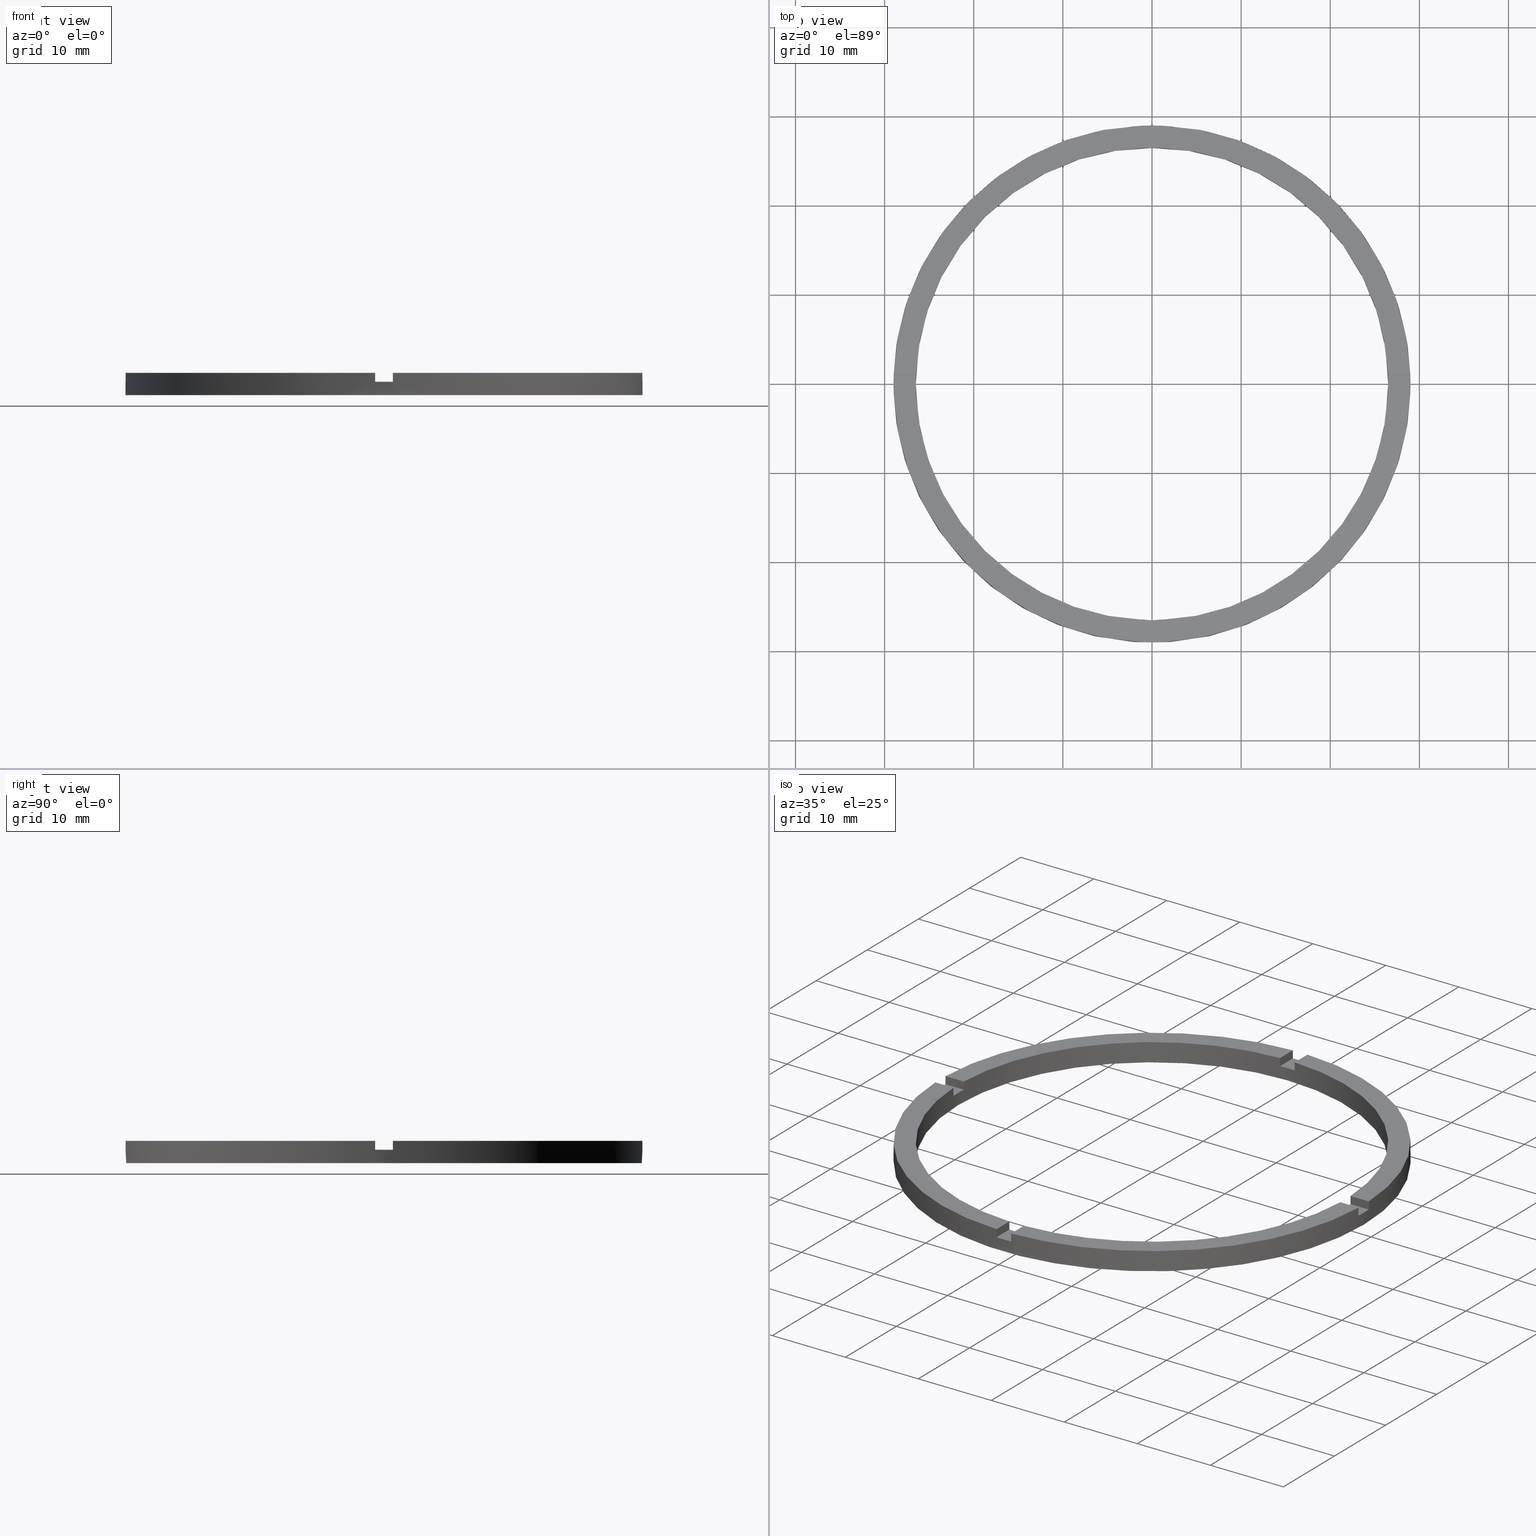
[diagram: canonical four-view strip — front | top / right | iso, engineering-drawing reading convention]
A machine part, canonical four-view strip (front | top / right | iso — engineering-drawing reading convention). The complete STEP part file that produces these views, byte-faithful:
ISO-10303-21;
HEADER;
FILE_DESCRIPTION (( 'STEP AP203' ),
    '1' );
FILE_NAME ('514121.step',
    '2024-12-26T02:39:31',
    ( 'MSI' ),
    ( '' ),
    'SwSTEP 2.0',
    'SolidWorks 2020',
    '' );
FILE_SCHEMA (( 'CONFIG_CONTROL_DESIGN' ));
ENDSEC;

DATA;
#1 = PLANE ( 'NONE',  #55 ) ;
#2 = DIRECTION ( 'NONE',  ( 1.000000000000000000, 0.000000000000000000, -0.000000000000000000 ) ) ;
#3 = CARTESIAN_POINT ( 'NONE',  ( 0.000000000000000000, 0.000000000000000000, 1.500000000000000000 ) ) ;
#4 = AXIS2_PLACEMENT_3D ( 'NONE', #428, #183, #515 ) ;
#5 = CC_DESIGN_DATE_AND_TIME_ASSIGNMENT ( #741, #246, ( #334 ) ) ;
#6 = EDGE_CURVE ( 'NONE', #592, #297, #583, .T. ) ;
#7 = SECURITY_CLASSIFICATION_LEVEL ( 'unclassified' ) ;
#8 = CARTESIAN_POINT ( 'NONE',  ( -1.000000000000159872, -26.48112535373071807, 1.500000000000000000 ) ) ;
#9 = AXIS2_PLACEMENT_3D ( 'NONE', #301, #612, #59 ) ;
#10 = EDGE_CURVE ( 'NONE', #660, #283, #332, .T. ) ;
#11 = ORIENTED_EDGE ( 'NONE', *, *, #452, .T. ) ;
#12 = CARTESIAN_POINT ( 'NONE',  ( 0.9999999999999733546, 26.48112535373072518, 2.500000000000000000 ) ) ;
#13 = ORIENTED_EDGE ( 'NONE', *, *, #500, .F. ) ;
#14 = AXIS2_PLACEMENT_3D ( 'NONE', #781, #676, #436 ) ;
#15 = ORIENTED_EDGE ( 'NONE', *, *, #142, .T. ) ;
#16 = ORIENTED_EDGE ( 'NONE', *, *, #157, .T. ) ;
#17 = DIRECTION ( 'NONE',  ( -1.301042606982605567E-16, 1.000000000000000000, -0.000000000000000000 ) ) ;
#18 = ORIENTED_EDGE ( 'NONE', *, *, #10, .F. ) ;
#19 = CARTESIAN_POINT ( 'NONE',  ( 29.00000000000000000, 3.551475717527324030E-15, 1.500000000000000000 ) ) ;
#20 = DIRECTION ( 'NONE',  ( -1.000000000000000000, 0.000000000000000000, 0.000000000000000000 ) ) ;
#21 = VERTEX_POINT ( 'NONE', #319 ) ;
#22 = ORIENTED_EDGE ( 'NONE', *, *, #491, .F. ) ;
#23 = DESIGN_CONTEXT ( 'detailed design', #326, 'design' ) ;
#24 = ORIENTED_EDGE ( 'NONE', *, *, #418, .F. ) ;
#25 = ORIENTED_EDGE ( 'NONE', *, *, #775, .F. ) ;
#26 = ORIENTED_EDGE ( 'NONE', *, *, #152, .T. ) ;
#27 = CARTESIAN_POINT ( 'NONE',  ( -1.000000000000026645, 26.48112535373072163, 1.500000000000000000 ) ) ;
#28 = EDGE_LOOP ( 'NONE', ( #289, #267 ) ) ;
#29 = EDGE_LOOP ( 'NONE', ( #364, #296, #46, #50, #265, #557 ) ) ;
#30 = SECURITY_CLASSIFICATION ( '', '', #7 ) ;
#31 = EDGE_CURVE ( 'NONE', #659, #260, #330, .T. ) ;
#32 = ORIENTED_EDGE ( 'NONE', *, *, #675, .T. ) ;
#33 = ORIENTED_EDGE ( 'NONE', *, *, #662, .F. ) ;
#34 = CARTESIAN_POINT ( 'NONE',  ( 0.000000000000000000, 0.000000000000000000, 1.500000000000000000 ) ) ;
#35 = EDGE_LOOP ( 'NONE', ( #295, #623, #539, #224 ) ) ;
#36 = VERTEX_POINT ( 'NONE', #611 ) ;
#37 = CARTESIAN_POINT ( 'NONE',  ( 0.9999999999999733546, 19.00000000000000355, 2.500000000000000000 ) ) ;
#38 = CARTESIAN_POINT ( 'NONE',  ( 0.9999999999999733546, 19.00000000000000355, 1.500000000000000000 ) ) ;
#39 = ORIENTED_EDGE ( 'NONE', *, *, #529, .T. ) ;
#40 = ORIENTED_EDGE ( 'NONE', *, *, #537, .T. ) ;
#41 = ADVANCED_FACE ( 'NONE', ( #614 ), #181, .T. ) ;
#42 = ORIENTED_EDGE ( 'NONE', *, *, #743, .T. ) ;
#43 = ORIENTED_EDGE ( 'NONE', *, *, #519, .T. ) ;
#44 = CLOSED_SHELL ( 'NONE', ( #108, #205, #98, #41, #245, #410, #349, #308, #338, #327, #114, #694, #448, #257, #396, #689, #405, #647, #651, #188, #505 ) ) ;
#45 = DIRECTION ( 'NONE',  ( 1.734723475976807341E-16, -1.000000000000000000, 0.000000000000000000 ) ) ;
#46 = ORIENTED_EDGE ( 'NONE', *, *, #107, .T. ) ;
#47 = DIRECTION ( 'NONE',  ( 0.000000000000000000, 0.000000000000000000, 1.000000000000000000 ) ) ;
#48 = ORIENTED_EDGE ( 'NONE', *, *, #124, .F. ) ;
#49 = EDGE_LOOP ( 'NONE', ( #76, #87, #555, #294 ) ) ;
#50 = ORIENTED_EDGE ( 'NONE', *, *, #31, .F. ) ;
#51 = ORIENTED_EDGE ( 'NONE', *, *, #444, .F. ) ;
#52 = CARTESIAN_POINT ( 'NONE',  ( 0.000000000000000000, 0.000000000000000000, 0.000000000000000000 ) ) ;
#53 = ORIENTED_EDGE ( 'NONE', *, *, #280, .F. ) ;
#54 = ORIENTED_EDGE ( 'NONE', *, *, #64, .T. ) ;
#55 = AXIS2_PLACEMENT_3D ( 'NONE', #682, #496, #528 ) ;
#56 = ORIENTED_EDGE ( 'NONE', *, *, #606, .F. ) ;
#57 = VERTEX_POINT ( 'NONE', #434 ) ;
#58 = ORIENTED_EDGE ( 'NONE', *, *, #518, .T. ) ;
#59 = DIRECTION ( 'NONE',  ( 1.000000000000000000, 0.000000000000000000, 0.000000000000000000 ) ) ;
#60 = ORIENTED_EDGE ( 'NONE', *, *, #70, .T. ) ;
#61 = VERTEX_POINT ( 'NONE', #136 ) ;
#62 = DIRECTION ( 'NONE',  ( -0.000000000000000000, -0.000000000000000000, -1.000000000000000000 ) ) ;
#63 = ORIENTED_EDGE ( 'NONE', *, *, #6, .T. ) ;
#64 = EDGE_CURVE ( 'NONE', #550, #541, #594, .T. ) ;
#65 = ORIENTED_EDGE ( 'NONE', *, *, #253, .F. ) ;
#66 = CARTESIAN_POINT ( 'NONE',  ( 29.00000000000000000, 3.551475717527324030E-15, 0.000000000000000000 ) ) ;
#67 = AXIS2_PLACEMENT_3D ( 'NONE', #373, #523, #773 ) ;
#68 = LINE ( 'NONE', #339, #317 ) ;
#69 = CARTESIAN_POINT ( 'NONE',  ( 0.9999999999998404610, -28.98275349237888321, 1.500000000000000000 ) ) ;
#70 = EDGE_CURVE ( 'NONE', #150, #57, #86, .T. ) ;
#71 = LINE ( 'NONE', #37, #323 ) ;
#72 = VECTOR ( 'NONE', #626, 1000.000000000000000 ) ;
#73 = DIRECTION ( 'NONE',  ( -0.000000000000000000, -0.000000000000000000, -1.000000000000000000 ) ) ;
#74 = FACE_OUTER_BOUND ( 'NONE', #316, .T. ) ;
#75 = LINE ( 'NONE', #577, #341 ) ;
#76 = ORIENTED_EDGE ( 'NONE', *, *, #70, .F. ) ;
#77 = DIRECTION ( 'NONE',  ( -0.000000000000000000, -0.000000000000000000, -1.000000000000000000 ) ) ;
#78 = FACE_OUTER_BOUND ( 'NONE', #175, .T. ) ;
#79 = CARTESIAN_POINT ( 'NONE',  ( 0.000000000000000000, 0.000000000000000000, 0.000000000000000000 ) ) ;
#80 = CYLINDRICAL_SURFACE ( 'NONE', #318, 26.50000000000000355 ) ;
#81 = PLANE ( 'NONE',  #118 ) ;
#82 = VECTOR ( 'NONE', #527, 1000.000000000000000 ) ;
#83 = LINE ( 'NONE', #685, #90 ) ;
#84 = CC_DESIGN_APPROVAL ( #687, ( #30 ) ) ;
#85 = CIRCLE ( 'NONE', #361, 26.50000000000000355 ) ;
#86 = LINE ( 'NONE', #684, #605 ) ;
#87 = ORIENTED_EDGE ( 'NONE', *, *, #234, .F. ) ;
#88 = CARTESIAN_POINT ( 'NONE',  ( 0.9999999999998404610, -28.98275349237888321, 2.500000000000000000 ) ) ;
#89 = LINE ( 'NONE', #704, #451 ) ;
#90 = VECTOR ( 'NONE', #525, 1000.000000000000000 ) ;
#91 = FACE_OUTER_BOUND ( 'NONE', #665, .T. ) ;
#92 = PERSON_AND_ORGANIZATION_ROLE ( 'classification_officer' ) ;
#93 = DIRECTION ( 'NONE',  ( 1.000000000000000000, 0.000000000000000000, 0.000000000000000000 ) ) ;
#94 = AXIS2_PLACEMENT_3D ( 'NONE', #415, #356, #420 ) ;
#95 = FACE_OUTER_BOUND ( 'NONE', #746, .T. ) ;
#96 = CARTESIAN_POINT ( 'NONE',  ( 0.9999999999999733546, 28.98275349237887966, 2.500000000000000000 ) ) ;
#97 = AXIS2_PLACEMENT_3D ( 'NONE', #778, #229, #371 ) ;
#98 = ADVANCED_FACE ( 'NONE', ( #324 ), #81, .T. ) ;
#99 = CIRCLE ( 'NONE', #511, 26.50000000000000355 ) ;
#100 = VECTOR ( 'NONE', #442, 1000.000000000000000 ) ;
#101 = LINE ( 'NONE', #277, #624 ) ;
#102 = DIRECTION ( 'NONE',  ( 1.000000000000000000, 1.301042606982605567E-16, 0.000000000000000000 ) ) ;
#103 = VECTOR ( 'NONE', #667, 1000.000000000000000 ) ;
#104 = DIRECTION ( 'NONE',  ( 1.000000000000000000, 0.000000000000000000, 0.000000000000000000 ) ) ;
#105 = ORIENTED_EDGE ( 'NONE', *, *, #721, .T. ) ;
#106 = FACE_OUTER_BOUND ( 'NONE', #404, .T. ) ;
#107 = EDGE_CURVE ( 'NONE', #573, #260, #617, .T. ) ;
#108 = ADVANCED_FACE ( 'NONE', ( #95 ), #80, .F. ) ;
#109 = CIRCLE ( 'NONE', #585, 29.00000000000000000 ) ;
#110 = LINE ( 'NONE', #262, #103 ) ;
#111 = FACE_OUTER_BOUND ( 'NONE', #470, .T. ) ;
#112 = DIRECTION ( 'NONE',  ( 1.000000000000000000, 1.734723475976807341E-16, -0.000000000000000000 ) ) ;
#113 = CIRCLE ( 'NONE', #702, 29.00000000000000000 ) ;
#114 = ADVANCED_FACE ( 'NONE', ( #335 ), #656, .F. ) ;
#115 = DIRECTION ( 'NONE',  ( 1.000000000000000000, 0.000000000000000000, 0.000000000000000000 ) ) ;
#116 = CARTESIAN_POINT ( 'NONE',  ( 0.000000000000000000, 0.000000000000000000, 2.500000000000000000 ) ) ;
#117 = ORIENTED_EDGE ( 'NONE', *, *, #582, .F. ) ;
#118 = AXIS2_PLACEMENT_3D ( 'NONE', #239, #388, #218 ) ;
#119 = DIRECTION ( 'NONE',  ( 0.000000000000000000, 0.000000000000000000, 1.000000000000000000 ) ) ;
#120 = LINE ( 'NONE', #336, #384 ) ;
#121 = DIRECTION ( 'NONE',  ( -1.734723475976807341E-16, 1.000000000000000000, 0.000000000000000000 ) ) ;
#122 = DIRECTION ( 'NONE',  ( 1.000000000000000000, 0.000000000000000000, 0.000000000000000000 ) ) ;
#123 = APPLICATION_PROTOCOL_DEFINITION ( 'international standard', 'config_control_design', 1994, #161 ) ;
#124 = EDGE_CURVE ( 'NONE', #726, #287, #337, .T. ) ;
#125 = CARTESIAN_POINT ( 'NONE',  ( 19.00000000000000000, 0.9999999999998427924, 1.500000000000000000 ) ) ;
#126 = ORIENTED_EDGE ( 'NONE', *, *, #134, .T. ) ;
#127 = DIRECTION ( 'NONE',  ( 1.301042606982605567E-16, -1.000000000000000000, 0.000000000000000000 ) ) ;
#128 = ORIENTED_EDGE ( 'NONE', *, *, #426, .T. ) ;
#129 = EDGE_CURVE ( 'NONE', #563, #649, #599, .T. ) ;
#130 = EDGE_CURVE ( 'NONE', #534, #402, #359, .T. ) ;
#131 = CARTESIAN_POINT ( 'NONE',  ( 0.000000000000000000, 0.000000000000000000, 2.500000000000000000 ) ) ;
#132 = CARTESIAN_POINT ( 'NONE',  ( -1.000000000000026645, 19.00000000000000355, 2.500000000000000000 ) ) ;
#133 = AXIS2_PLACEMENT_3D ( 'NONE', #544, #456, #551 ) ;
#134 = EDGE_CURVE ( 'NONE', #135, #185, #329, .T. ) ;
#135 = VERTEX_POINT ( 'NONE', #711 ) ;
#136 = CARTESIAN_POINT ( 'NONE',  ( -28.98275349237887610, -1.000000000000027311, 2.500000000000000000 ) ) ;
#137 = DIRECTION ( 'NONE',  ( 1.301042606982605567E-16, -1.000000000000000000, 0.000000000000000000 ) ) ;
#138 = VERTEX_POINT ( 'NONE', #650 ) ;
#139 = DIRECTION ( 'NONE',  ( 0.000000000000000000, 0.000000000000000000, 1.000000000000000000 ) ) ;
#140 = EDGE_CURVE ( 'NONE', #535, #312, #350, .T. ) ;
#141 = CARTESIAN_POINT ( 'NONE',  ( 0.000000000000000000, 0.000000000000000000, 1.500000000000000000 ) ) ;
#142 = EDGE_CURVE ( 'NONE', #406, #649, #68, .T. ) ;
#143 = ORIENTED_EDGE ( 'NONE', *, *, #244, .F. ) ;
#144 = DATE_TIME_ROLE ( 'classification_date' ) ;
#145 = DIRECTION ( 'NONE',  ( 1.000000000000000000, 0.000000000000000000, 0.000000000000000000 ) ) ;
#146 = ORIENTED_EDGE ( 'NONE', *, *, #673, .F. ) ;
#147 = DIRECTION ( 'NONE',  ( 0.000000000000000000, 0.000000000000000000, 1.000000000000000000 ) ) ;
#148 = CARTESIAN_POINT ( 'NONE',  ( -28.98275349237887966, 0.9999999999999726885, 1.500000000000000000 ) ) ;
#149 = ORIENTED_EDGE ( 'NONE', *, *, #675, .F. ) ;
#150 = VERTEX_POINT ( 'NONE', #459 ) ;
#151 = CARTESIAN_POINT ( 'NONE',  ( -26.48112535373072518, 0.9999999999999731326, 1.500000000000000000 ) ) ;
#152 = EDGE_CURVE ( 'NONE', #225, #21, #85, .T. ) ;
#153 = AXIS2_PLACEMENT_3D ( 'NONE', #445, #424, #263 ) ;
#154 = APPROVAL ( #639, 'δָ��' ) ;
#155 = CARTESIAN_POINT ( 'NONE',  ( 0.000000000000000000, 0.000000000000000000, 1.500000000000000000 ) ) ;
#156 = PLANE ( 'NONE',  #532 ) ;
#157 = EDGE_CURVE ( 'NONE', #726, #660, #344, .T. ) ;
#158 = CARTESIAN_POINT ( 'NONE',  ( 0.000000000000000000, 0.000000000000000000, 0.000000000000000000 ) ) ;
#159 =( GEOMETRIC_REPRESENTATION_CONTEXT ( 3 ) GLOBAL_UNCERTAINTY_ASSIGNED_CONTEXT ( ( #703 ) ) GLOBAL_UNIT_ASSIGNED_CONTEXT ( ( #281, #378, #493 ) ) REPRESENTATION_CONTEXT ( 'NONE', 'WORKASPACE' ) );
#160 = CARTESIAN_POINT ( 'NONE',  ( 0.000000000000000000, 0.000000000000000000, 2.500000000000000000 ) ) ;
#161 = APPLICATION_CONTEXT ( 'configuration controlled 3d designs of mechanical parts and assemblies' ) ;
#162 = LINE ( 'NONE', #132, #194 ) ;
#163 = MECHANICAL_CONTEXT ( 'NONE', #161, 'mechanical' ) ;
#164 = CARTESIAN_POINT ( 'NONE',  ( 0.000000000000000000, 0.000000000000000000, 1.500000000000000000 ) ) ;
#165 = CC_DESIGN_PERSON_AND_ORGANIZATION_ASSIGNMENT ( #207, #242, ( #334 ) ) ;
#166 = PLANE ( 'NONE',  #222 ) ;
#167 = CARTESIAN_POINT ( 'NONE',  ( 19.00000000000000000, 0.9999999999998427924, 1.500000000000000000 ) ) ;
#168 = CARTESIAN_POINT ( 'NONE',  ( 0.000000000000000000, 0.000000000000000000, 2.500000000000000000 ) ) ;
#169 = PERSON_AND_ORGANIZATION ( #588, #446 ) ;
#170 = APPROVAL_PERSON_ORGANIZATION ( #710, #507, #548 ) ;
#171 = CALENDAR_DATE ( 2024, 26, 12 ) ;
#172 = CARTESIAN_POINT ( 'NONE',  ( 0.9999999999998402389, -26.48112535373072873, 2.500000000000000000 ) ) ;
#173 = DATE_AND_TIME ( #171, #712 ) ;
#174 = DIRECTION ( 'NONE',  ( 1.000000000000000000, 4.336808689942018352E-17, 0.000000000000000000 ) ) ;
#175 = EDGE_LOOP ( 'NONE', ( #206, #713, #561, #26, #752, #616, #270, #569, #276, #642, #499, #286 ) ) ;
#176 = AXIS2_PLACEMENT_3D ( 'NONE', #669, #284, #432 ) ;
#177 = APPROVAL_DATE_TIME ( #173, #507 ) ;
#178 = DIRECTION ( 'NONE',  ( 1.000000000000000000, 0.000000000000000000, 0.000000000000000000 ) ) ;
#179 = CIRCLE ( 'NONE', #187, 29.00000000000000000 ) ;
#180 = CIRCLE ( 'NONE', #153, 29.00000000000000000 ) ;
#181 = PLANE ( 'NONE',  #433 ) ;
#182 = LINE ( 'NONE', #290, #460 ) ;
#183 = DIRECTION ( 'NONE',  ( 0.000000000000000000, 0.000000000000000000, 1.000000000000000000 ) ) ;
#184 = ORIENTED_EDGE ( 'NONE', *, *, #250, .T. ) ;
#185 = VERTEX_POINT ( 'NONE', #27 ) ;
#186 = LINE ( 'NONE', #221, #467 ) ;
#187 = AXIS2_PLACEMENT_3D ( 'NONE', #668, #672, #666 ) ;
#188 = ADVANCED_FACE ( 'NONE', ( #91 ), #578, .F. ) ;
#189 = CIRCLE ( 'NONE', #542, 26.50000000000000355 ) ;
#190 = DIRECTION ( 'NONE',  ( 0.000000000000000000, 0.000000000000000000, 1.000000000000000000 ) ) ;
#191 = VECTOR ( 'NONE', #475, 1000.000000000000000 ) ;
#192 = DIRECTION ( 'NONE',  ( 1.000000000000000000, 0.000000000000000000, 0.000000000000000000 ) ) ;
#193 = VERTEX_POINT ( 'NONE', #69 ) ;
#194 = VECTOR ( 'NONE', #729, 1000.000000000000000 ) ;
#195 = VERTEX_POINT ( 'NONE', #237 ) ;
#196 = VECTOR ( 'NONE', #73, 1000.000000000000000 ) ;
#197 = VERTEX_POINT ( 'NONE', #628 ) ;
#198 = LINE ( 'NONE', #644, #437 ) ;
#199 = DIRECTION ( 'NONE',  ( 1.000000000000000000, 1.734723475976807341E-16, -0.000000000000000000 ) ) ;
#200 = LOCAL_TIME ( 10, 39, 31.00000000000000000, #740 ) ;
#201 = DATE_AND_TIME ( #480, #220 ) ;
#202 = DATE_AND_TIME ( #210, #490 ) ;
#203 = CARTESIAN_POINT ( 'NONE',  ( 26.48112535373072873, 0.9999999999998430145, 2.500000000000000000 ) ) ;
#204 = DIRECTION ( 'NONE',  ( -1.000000000000000000, -1.734723475976807341E-16, 0.000000000000000000 ) ) ;
#205 = ADVANCED_FACE ( 'NONE', ( #615 ), #340, .T. ) ;
#206 = ORIENTED_EDGE ( 'NONE', *, *, #765, .F. ) ;
#207 = PERSON_AND_ORGANIZATION ( #588, #446 ) ;
#208 = CARTESIAN_POINT ( 'NONE',  ( 0.000000000000000000, 0.000000000000000000, 1.500000000000000000 ) ) ;
#209 = CC_DESIGN_PERSON_AND_ORGANIZATION_ASSIGNMENT ( #228, #400, ( #720 ) ) ;
#210 = CALENDAR_DATE ( 2024, 26, 12 ) ;
#211 = DIRECTION ( 'NONE',  ( 0.000000000000000000, 0.000000000000000000, 1.000000000000000000 ) ) ;
#212 = ORIENTED_EDGE ( 'NONE', *, *, #129, .F. ) ;
#213 = ORIENTED_EDGE ( 'NONE', *, *, #721, .F. ) ;
#214 = LOCAL_TIME ( 10, 39, 31.00000000000000000, #486 ) ;
#215 = ORIENTED_EDGE ( 'NONE', *, *, #298, .F. ) ;
#216 = CARTESIAN_POINT ( 'NONE',  ( 0.000000000000000000, 0.000000000000000000, 0.000000000000000000 ) ) ;
#217 = CARTESIAN_POINT ( 'NONE',  ( -1.000000000000159650, -28.98275349237887255, 2.500000000000000000 ) ) ;
#218 = DIRECTION ( 'NONE',  ( 1.000000000000000000, 0.000000000000000000, -0.000000000000000000 ) ) ;
#219 = DIRECTION ( 'NONE',  ( 0.000000000000000000, 0.000000000000000000, 1.000000000000000000 ) ) ;
#220 = LOCAL_TIME ( 10, 39, 31.00000000000000000, #748 ) ;
#221 = CARTESIAN_POINT ( 'NONE',  ( 26.48112535373071807, -1.000000000000156986, 2.500000000000000000 ) ) ;
#222 = AXIS2_PLACEMENT_3D ( 'NONE', #304, #386, #503 ) ;
#223 = PERSON_AND_ORGANIZATION ( #588, #446 ) ;
#224 = ORIENTED_EDGE ( 'NONE', *, *, #250, .F. ) ;
#225 = VERTEX_POINT ( 'NONE', #498 ) ;
#226 = DIRECTION ( 'NONE',  ( 0.000000000000000000, 0.000000000000000000, 1.000000000000000000 ) ) ;
#227 = EDGE_CURVE ( 'NONE', #402, #293, #353, .T. ) ;
#228 = PERSON_AND_ORGANIZATION ( #588, #446 ) ;
#229 = DIRECTION ( 'NONE',  ( -0.000000000000000000, 0.000000000000000000, 1.000000000000000000 ) ) ;
#230 = PLANE ( 'NONE',  #696 ) ;
#231 = AXIS2_PLACEMENT_3D ( 'NONE', #708, #45, #779 ) ;
#232 = CARTESIAN_POINT ( 'NONE',  ( -26.50000000000000355, 0.000000000000000000, 1.500000000000000000 ) ) ;
#233 = EDGE_CURVE ( 'NONE', #312, #535, #613, .T. ) ;
#234 = EDGE_CURVE ( 'NONE', #592, #150, #601, .T. ) ;
#235 = CARTESIAN_POINT ( 'NONE',  ( 26.50000000000000355, 3.245314017740486554E-15, 2.500000000000000000 ) ) ;
#236 = ORIENTED_EDGE ( 'NONE', *, *, #673, .T. ) ;
#237 = CARTESIAN_POINT ( 'NONE',  ( -1.000000000000159650, -28.98275349237887255, 1.500000000000000000 ) ) ;
#238 = ORIENTED_EDGE ( 'NONE', *, *, #393, .F. ) ;
#239 = CARTESIAN_POINT ( 'NONE',  ( 0.000000000000000000, 0.000000000000000000, 2.500000000000000000 ) ) ;
#240 = CC_DESIGN_PERSON_AND_ORGANIZATION_ASSIGNMENT ( #478, #509, ( #720 ) ) ;
#241 = DIRECTION ( 'NONE',  ( -1.000000000000000000, -1.301042606982605567E-16, 0.000000000000000000 ) ) ;
#242 = PERSON_AND_ORGANIZATION_ROLE ( 'creator' ) ;
#243 = CARTESIAN_POINT ( 'NONE',  ( 0.9999999999998402389, -26.48112535373072873, 2.500000000000000000 ) ) ;
#244 = EDGE_CURVE ( 'NONE', #291, #660, #320, .T. ) ;
#245 = ADVANCED_FACE ( 'NONE', ( #581 ), #166, .T. ) ;
#246 = DATE_TIME_ROLE ( 'creation_date' ) ;
#247 = AXIS2_PLACEMENT_3D ( 'NONE', #34, #751, #145 ) ;
#248 = CARTESIAN_POINT ( 'NONE',  ( -29.00000000000000000, 0.000000000000000000, 0.000000000000000000 ) ) ;
#249 = MANIFOLD_SOLID_BREP ( '�г�-����1', #44 ) ;
#250 = EDGE_CURVE ( 'NONE', #195, #293, #83, .T. ) ;
#251 = DIRECTION ( 'NONE',  ( 0.000000000000000000, 0.000000000000000000, 1.000000000000000000 ) ) ;
#252 = CARTESIAN_POINT ( 'NONE',  ( 0.000000000000000000, 0.000000000000000000, 0.000000000000000000 ) ) ;
#253 = EDGE_CURVE ( 'NONE', #135, #674, #358, .T. ) ;
#254 = CARTESIAN_POINT ( 'NONE',  ( 0.9999999999998402389, -26.48112535373072873, 1.500000000000000000 ) ) ;
#255 = AXIS2_PLACEMENT_3D ( 'NONE', #160, #648, #104 ) ;
#256 = CARTESIAN_POINT ( 'NONE',  ( -28.98275349237887966, 0.9999999999999726885, 2.500000000000000000 ) ) ;
#257 = ADVANCED_FACE ( 'NONE', ( #586 ), #156, .F. ) ;
#258 = DIRECTION ( 'NONE',  ( 0.000000000000000000, 1.000000000000000000, 0.000000000000000000 ) ) ;
#259 = CARTESIAN_POINT ( 'NONE',  ( 0.000000000000000000, 0.000000000000000000, 2.500000000000000000 ) ) ;
#260 = VERTEX_POINT ( 'NONE', #306 ) ;
#261 = ORIENTED_EDGE ( 'NONE', *, *, #782, .T. ) ;
#262 = CARTESIAN_POINT ( 'NONE',  ( 0.9999999999998391287, -19.00000000000018474, 1.500000000000000000 ) ) ;
#263 = DIRECTION ( 'NONE',  ( 1.000000000000000000, 0.000000000000000000, 0.000000000000000000 ) ) ;
#264 = ORIENTED_EDGE ( 'NONE', *, *, #461, .F. ) ;
#265 = ORIENTED_EDGE ( 'NONE', *, *, #489, .F. ) ;
#266 = CARTESIAN_POINT ( 'NONE',  ( 28.98275349237887255, -1.000000000000156763, 2.500000000000000000 ) ) ;
#267 = ORIENTED_EDGE ( 'NONE', *, *, #233, .T. ) ;
#268 = ORIENTED_EDGE ( 'NONE', *, *, #519, .F. ) ;
#269 = ORIENTED_EDGE ( 'NONE', *, *, #636, .F. ) ;
#270 = ORIENTED_EDGE ( 'NONE', *, *, #134, .F. ) ;
#271 = ORIENTED_EDGE ( 'NONE', *, *, #244, .T. ) ;
#272 = CARTESIAN_POINT ( 'NONE',  ( 28.98275349237888321, 0.9999999999998432365, 2.500000000000000000 ) ) ;
#273 = EDGE_LOOP ( 'NONE', ( #143, #397, #733, #572, #282, #15, #212, #40, #213, #552, #48, #16 ) ) ;
#274 = ORIENTED_EDGE ( 'NONE', *, *, #430, .T. ) ;
#275 = EDGE_LOOP ( 'NONE', ( #274, #63, #558, #564 ) ) ;
#276 = ORIENTED_EDGE ( 'NONE', *, *, #529, .F. ) ;
#277 = CARTESIAN_POINT ( 'NONE',  ( 29.00000000000000000, 3.551475717527324030E-15, 2.500000000000000000 ) ) ;
#278 = ORIENTED_EDGE ( 'NONE', *, *, #765, .T. ) ;
#279 = ORIENTED_EDGE ( 'NONE', *, *, #491, .T. ) ;
#280 = EDGE_CURVE ( 'NONE', #197, #402, #355, .T. ) ;
#281 =( LENGTH_UNIT ( ) NAMED_UNIT ( * ) SI_UNIT ( .MILLI., .METRE. ) );
#282 = ORIENTED_EDGE ( 'NONE', *, *, #688, .F. ) ;
#283 = VERTEX_POINT ( 'NONE', #753 ) ;
#284 = DIRECTION ( 'NONE',  ( 0.000000000000000000, 0.000000000000000000, 1.000000000000000000 ) ) ;
#285 = EDGE_CURVE ( 'NONE', #774, #138, #342, .T. ) ;
#286 = ORIENTED_EDGE ( 'NONE', *, *, #233, .F. ) ;
#287 = VERTEX_POINT ( 'NONE', #96 ) ;
#288 = AXIS2_PLACEMENT_3D ( 'NONE', #661, #654, #354 ) ;
#289 = ORIENTED_EDGE ( 'NONE', *, *, #140, .T. ) ;
#290 = CARTESIAN_POINT ( 'NONE',  ( 19.00000000000000000, -1.000000000000157208, 1.500000000000000000 ) ) ;
#291 = VERTEX_POINT ( 'NONE', #19 ) ;
#292 = ORIENTED_EDGE ( 'NONE', *, *, #124, .T. ) ;
#293 = VERTEX_POINT ( 'NONE', #217 ) ;
#294 = ORIENTED_EDGE ( 'NONE', *, *, #418, .T. ) ;
#295 = ORIENTED_EDGE ( 'NONE', *, *, #743, .F. ) ;
#296 = ORIENTED_EDGE ( 'NONE', *, *, #597, .T. ) ;
#297 = VERTEX_POINT ( 'NONE', #254 ) ;
#298 = EDGE_CURVE ( 'NONE', #21, #287, #71, .T. ) ;
#299 = DIRECTION ( 'NONE',  ( -0.000000000000000000, -0.000000000000000000, -1.000000000000000000 ) ) ;
#300 = ORIENTED_EDGE ( 'NONE', *, *, #285, .F. ) ;
#301 = CARTESIAN_POINT ( 'NONE',  ( 0.000000000000000000, 0.000000000000000000, 1.500000000000000000 ) ) ;
#302 = ORIENTED_EDGE ( 'NONE', *, *, #768, .F. ) ;
#303 = ORIENTED_EDGE ( 'NONE', *, *, #10, .T. ) ;
#304 = CARTESIAN_POINT ( 'NONE',  ( 0.000000000000000000, 0.000000000000000000, 2.500000000000000000 ) ) ;
#305 = ORIENTED_EDGE ( 'NONE', *, *, #31, .T. ) ;
#306 = CARTESIAN_POINT ( 'NONE',  ( -26.48112535373072163, -1.000000000000026867, 1.500000000000000000 ) ) ;
#307 = VERTEX_POINT ( 'NONE', #345 ) ;
#308 = ADVANCED_FACE ( 'NONE', ( #74 ), #591, .T. ) ;
#309 = ORIENTED_EDGE ( 'NONE', *, *, #643, .F. ) ;
#310 = ORIENTED_EDGE ( 'NONE', *, *, #606, .T. ) ;
#311 = ORIENTED_EDGE ( 'NONE', *, *, #537, .F. ) ;
#312 = VERTEX_POINT ( 'NONE', #520 ) ;
#313 = CARTESIAN_POINT ( 'NONE',  ( 0.9999999999998391287, -19.00000000000018474, 2.500000000000000000 ) ) ;
#314 = ORIENTED_EDGE ( 'NONE', *, *, #782, .F. ) ;
#315 = CARTESIAN_POINT ( 'NONE',  ( 0.000000000000000000, 0.000000000000000000, 2.500000000000000000 ) ) ;
#316 = EDGE_LOOP ( 'NONE', ( #238, #22, #414, #24, #608, #149, #184, #146, #723, #399, #54, #536 ) ) ;
#317 = VECTOR ( 'NONE', #408, 1000.000000000000000 ) ;
#318 = AXIS2_PLACEMENT_3D ( 'NONE', #116, #570, #20 ) ;
#319 = CARTESIAN_POINT ( 'NONE',  ( 0.9999999999999733546, 26.48112535373072518, 2.500000000000000000 ) ) ;
#320 = CIRCLE ( 'NONE', #383, 29.00000000000000000 ) ;
#321 = EDGE_CURVE ( 'NONE', #538, #193, #75, .T. ) ;
#322 = CARTESIAN_POINT ( 'NONE',  ( 0.000000000000000000, 0.000000000000000000, 2.500000000000000000 ) ) ;
#323 = VECTOR ( 'NONE', #258, 1000.000000000000000 ) ;
#324 = FACE_OUTER_BOUND ( 'NONE', #553, .T. ) ;
#325 = VECTOR ( 'NONE', #127, 1000.000000000000000 ) ;
#326 = APPLICATION_CONTEXT ( 'configuration controlled 3d designs of mechanical parts and assemblies' ) ;
#327 = ADVANCED_FACE ( 'NONE', ( #603 ), #600, .F. ) ;
#328 = DIRECTION ( 'NONE',  ( 1.000000000000000000, 0.000000000000000000, 0.000000000000000000 ) ) ;
#329 = LINE ( 'NONE', #767, #348 ) ;
#330 = CIRCLE ( 'NONE', #678, 26.50000000000000355 ) ;
#331 = CC_DESIGN_SECURITY_CLASSIFICATION ( #30, ( #720 ) ) ;
#332 = LINE ( 'NONE', #167, #82 ) ;
#333 = AXIS2_PLACEMENT_3D ( 'NONE', #641, #102, #700 ) ;
#334 = PRODUCT_DEFINITION ( 'δ֪', '', #720, #23 ) ;
#335 = FACE_OUTER_BOUND ( 'NONE', #554, .T. ) ;
#336 = CARTESIAN_POINT ( 'NONE',  ( -19.00000000000018829, 0.9999999999999744649, 2.500000000000000000 ) ) ;
#337 = CIRCLE ( 'NONE', #255, 29.00000000000000000 ) ;
#338 = ADVANCED_FACE ( 'NONE', ( #78 ), #631, .F. ) ;
#339 = CARTESIAN_POINT ( 'NONE',  ( -28.98275349237887966, 0.9999999999999726885, 2.500000000000000000 ) ) ;
#340 = CYLINDRICAL_SURFACE ( 'NONE', #14, 29.00000000000000000 ) ;
#341 = VECTOR ( 'NONE', #587, 1000.000000000000000 ) ;
#342 = LINE ( 'NONE', #691, #579 ) ;
#343 = DIRECTION ( 'NONE',  ( 0.000000000000000000, 0.000000000000000000, 1.000000000000000000 ) ) ;
#344 = LINE ( 'NONE', #701, #610 ) ;
#345 = CARTESIAN_POINT ( 'NONE',  ( 26.48112535373071807, -1.000000000000156986, 1.500000000000000000 ) ) ;
#346 = CARTESIAN_POINT ( 'NONE',  ( -19.00000000000018829, 0.9999999999999744649, 1.500000000000000000 ) ) ;
#347 = EDGE_CURVE ( 'NONE', #61, #573, #619, .T. ) ;
#348 = VECTOR ( 'NONE', #707, 1000.000000000000000 ) ;
#349 = ADVANCED_FACE ( 'NONE', ( #374, #629 ), #230, .F. ) ;
#350 = CIRCLE ( 'NONE', #398, 26.50000000000000355 ) ;
#351 = AXIS2_PLACEMENT_3D ( 'NONE', #164, #366, #2 ) ;
#352 = ADVANCED_BREP_SHAPE_REPRESENTATION ( '514121', ( #249, #769 ), #159 ) ;
#353 = LINE ( 'NONE', #731, #325 ) ;
#354 = DIRECTION ( 'NONE',  ( 1.000000000000000000, 0.000000000000000000, -0.000000000000000000 ) ) ;
#355 = CIRCLE ( 'NONE', #663, 26.50000000000000355 ) ;
#356 = DIRECTION ( 'NONE',  ( -0.000000000000000000, -0.000000000000000000, -1.000000000000000000 ) ) ;
#357 = DIRECTION ( 'NONE',  ( 0.000000000000000000, 0.000000000000000000, 1.000000000000000000 ) ) ;
#358 = CIRCLE ( 'NONE', #176, 26.50000000000000355 ) ;
#359 = LINE ( 'NONE', #416, #576 ) ;
#360 = VECTOR ( 'NONE', #17, 1000.000000000000000 ) ;
#361 = AXIS2_PLACEMENT_3D ( 'NONE', #521, #357, #589 ) ;
#362 = DIRECTION ( 'NONE',  ( -0.000000000000000000, 0.000000000000000000, 1.000000000000000000 ) ) ;
#363 = FACE_OUTER_BOUND ( 'NONE', #275, .T. ) ;
#364 = ORIENTED_EDGE ( 'NONE', *, *, #688, .T. ) ;
#365 = CIRCLE ( 'NONE', #516, 29.00000000000000000 ) ;
#366 = DIRECTION ( 'NONE',  ( 0.000000000000000000, 0.000000000000000000, 1.000000000000000000 ) ) ;
#367 = VECTOR ( 'NONE', #690, 1000.000000000000000 ) ;
#368 = CIRCLE ( 'NONE', #482, 26.50000000000000355 ) ;
#369 = LINE ( 'NONE', #506, #627 ) ;
#370 = FACE_OUTER_BOUND ( 'NONE', #531, .T. ) ;
#371 = DIRECTION ( 'NONE',  ( 1.000000000000000000, 0.000000000000000000, 0.000000000000000000 ) ) ;
#372 = LINE ( 'NONE', #203, #367 ) ;
#373 = CARTESIAN_POINT ( 'NONE',  ( 0.000000000000000000, 0.000000000000000000, 1.500000000000000000 ) ) ;
#374 = FACE_OUTER_BOUND ( 'NONE', #547, .T. ) ;
#375 = VECTOR ( 'NONE', #376, 1000.000000000000000 ) ;
#376 = DIRECTION ( 'NONE',  ( -0.000000000000000000, -0.000000000000000000, -1.000000000000000000 ) ) ;
#377 = VECTOR ( 'NONE', #147, 1000.000000000000000 ) ;
#378 =( NAMED_UNIT ( * ) PLANE_ANGLE_UNIT ( ) SI_UNIT ( $, .RADIAN. ) );
#379 = ORIENTED_EDGE ( 'NONE', *, *, #157, .F. ) ;
#380 = DIRECTION ( 'NONE',  ( 0.000000000000000000, 0.000000000000000000, 1.000000000000000000 ) ) ;
#381 = CARTESIAN_POINT ( 'NONE',  ( 0.9999999999999733546, 26.48112535373072518, 1.500000000000000000 ) ) ;
#382 = DIRECTION ( 'NONE',  ( 1.000000000000000000, -0.000000000000000000, 0.000000000000000000 ) ) ;
#383 = AXIS2_PLACEMENT_3D ( 'NONE', #3, #139, #178 ) ;
#384 = VECTOR ( 'NONE', #514, 1000.000000000000000 ) ;
#385 = CARTESIAN_POINT ( 'NONE',  ( -1.000000000000026645, 19.00000000000000355, 1.500000000000000000 ) ) ;
#386 = DIRECTION ( 'NONE',  ( 0.000000000000000000, 0.000000000000000000, 1.000000000000000000 ) ) ;
#387 = EDGE_CURVE ( 'NONE', #193, #297, #110, .T. ) ;
#388 = DIRECTION ( 'NONE',  ( 0.000000000000000000, 0.000000000000000000, 1.000000000000000000 ) ) ;
#389 = CARTESIAN_POINT ( 'NONE',  ( 28.98275349237887255, -1.000000000000156763, 1.500000000000000000 ) ) ;
#390 = PLANE ( 'NONE',  #4 ) ;
#391 = AXIS2_PLACEMENT_3D ( 'NONE', #168, #484, #435 ) ;
#392 = DIRECTION ( 'NONE',  ( 0.000000000000000000, 0.000000000000000000, 1.000000000000000000 ) ) ;
#393 = EDGE_CURVE ( 'NONE', #291, #759, #101, .T. ) ;
#394 = ORIENTED_EDGE ( 'NONE', *, *, #387, .T. ) ;
#395 = CARTESIAN_POINT ( 'NONE',  ( -1.000000000000026645, 28.98275349237887610, 1.500000000000000000 ) ) ;
#396 = ADVANCED_FACE ( 'NONE', ( #111 ), #485, .T. ) ;
#397 = ORIENTED_EDGE ( 'NONE', *, *, #393, .T. ) ;
#398 = AXIS2_PLACEMENT_3D ( 'NONE', #252, #421, #772 ) ;
#399 = ORIENTED_EDGE ( 'NONE', *, *, #597, .F. ) ;
#400 = PERSON_AND_ORGANIZATION_ROLE ( 'creator' ) ;
#401 = ORIENTED_EDGE ( 'NONE', *, *, #285, .T. ) ;
#402 = VERTEX_POINT ( 'NONE', #602 ) ;
#403 = DIRECTION ( 'NONE',  ( 0.000000000000000000, 0.000000000000000000, 1.000000000000000000 ) ) ;
#404 = EDGE_LOOP ( 'NONE', ( #105, #261, #655, #401 ) ) ;
#405 = ADVANCED_FACE ( 'NONE', ( #370 ), #1, .F. ) ;
#406 = VERTEX_POINT ( 'NONE', #148 ) ;
#407 = CARTESIAN_POINT ( 'NONE',  ( -28.98275349237887610, -1.000000000000027311, 1.500000000000000000 ) ) ;
#408 = DIRECTION ( 'NONE',  ( 0.000000000000000000, 0.000000000000000000, 1.000000000000000000 ) ) ;
#409 = CC_DESIGN_PERSON_AND_ORGANIZATION_ASSIGNMENT ( #497, #92, ( #30 ) ) ;
#410 = ADVANCED_FACE ( 'NONE', ( #633 ), #390, .T. ) ;
#411 = ORIENTED_EDGE ( 'NONE', *, *, #130, .F. ) ;
#412 = EDGE_CURVE ( 'NONE', #759, #541, #113, .T. ) ;
#413 = CARTESIAN_POINT ( 'NONE',  ( -26.50000000000000355, 0.000000000000000000, 0.000000000000000000 ) ) ;
#414 = ORIENTED_EDGE ( 'NONE', *, *, #775, .T. ) ;
#415 = CARTESIAN_POINT ( 'NONE',  ( 0.000000000000000000, 0.000000000000000000, 2.500000000000000000 ) ) ;
#416 = CARTESIAN_POINT ( 'NONE',  ( -1.000000000000159872, -26.48112535373071807, 2.500000000000000000 ) ) ;
#417 = VERTEX_POINT ( 'NONE', #389 ) ;
#418 = EDGE_CURVE ( 'NONE', #538, #57, #109, .T. ) ;
#419 = CARTESIAN_POINT ( 'NONE',  ( 0.000000000000000000, 0.000000000000000000, 1.500000000000000000 ) ) ;
#420 = DIRECTION ( 'NONE',  ( -1.000000000000000000, 0.000000000000000000, 0.000000000000000000 ) ) ;
#421 = DIRECTION ( 'NONE',  ( 0.000000000000000000, 0.000000000000000000, 1.000000000000000000 ) ) ;
#422 = AXIS2_PLACEMENT_3D ( 'NONE', #653, #62, #593 ) ;
#423 = AXIS2_PLACEMENT_3D ( 'NONE', #618, #679, #431 ) ;
#424 = DIRECTION ( 'NONE',  ( 0.000000000000000000, 0.000000000000000000, 1.000000000000000000 ) ) ;
#425 = CARTESIAN_POINT ( 'NONE',  ( -1.000000000000160982, -19.00000000000018474, 1.500000000000000000 ) ) ;
#426 = EDGE_CURVE ( 'NONE', #774, #21, #630, .T. ) ;
#427 = DIRECTION ( 'NONE',  ( -1.000000000000000000, -4.336808689942018352E-17, 0.000000000000000000 ) ) ;
#428 = CARTESIAN_POINT ( 'NONE',  ( 0.000000000000000000, 0.000000000000000000, 2.500000000000000000 ) ) ;
#429 = CARTESIAN_POINT ( 'NONE',  ( 0.000000000000000000, 0.000000000000000000, 0.000000000000000000 ) ) ;
#430 = EDGE_CURVE ( 'NONE', #538, #592, #634, .T. ) ;
#431 = DIRECTION ( 'NONE',  ( 0.000000000000000000, 0.000000000000000000, 1.000000000000000000 ) ) ;
#432 = DIRECTION ( 'NONE',  ( 1.000000000000000000, 0.000000000000000000, 0.000000000000000000 ) ) ;
#433 = AXIS2_PLACEMENT_3D ( 'NONE', #131, #380, #638 ) ;
#434 = CARTESIAN_POINT ( 'NONE',  ( 28.98275349237887255, -1.000000000000156763, 2.500000000000000000 ) ) ;
#435 = DIRECTION ( 'NONE',  ( 1.000000000000000000, 0.000000000000000000, 0.000000000000000000 ) ) ;
#436 = DIRECTION ( 'NONE',  ( -1.000000000000000000, 0.000000000000000000, 0.000000000000000000 ) ) ;
#437 = VECTOR ( 'NONE', #190, 1000.000000000000000 ) ;
#438 = LINE ( 'NONE', #235, #196 ) ;
#439 = DIRECTION ( 'NONE',  ( 0.000000000000000000, 0.000000000000000000, 1.000000000000000000 ) ) ;
#440 = PRODUCT_RELATED_PRODUCT_CATEGORY ( 'detail', '', ( #495 ) ) ;
#441 = APPROVAL_STATUS ( 'not_yet_approved' ) ;
#442 = DIRECTION ( 'NONE',  ( -1.000000000000000000, -4.336808689942018352E-17, -0.000000000000000000 ) ) ;
#443 = CARTESIAN_POINT ( 'NONE',  ( -29.00000000000000000, 0.000000000000000000, 2.500000000000000000 ) ) ;
#444 = EDGE_CURVE ( 'NONE', #307, #36, #99, .T. ) ;
#445 = CARTESIAN_POINT ( 'NONE',  ( 0.000000000000000000, 0.000000000000000000, 1.500000000000000000 ) ) ;
#446 = ORGANIZATION ( 'δָ��', 'δָ��', '' ) ;
#447 = VECTOR ( 'NONE', #481, 1000.000000000000000 ) ;
#448 = ADVANCED_FACE ( 'NONE', ( #363 ), #566, .F. ) ;
#449 = COORDINATED_UNIVERSAL_TIME_OFFSET ( 8, 0, .AHEAD. ) ;
#450 = DIRECTION ( 'NONE',  ( 0.000000000000000000, 0.000000000000000000, 1.000000000000000000 ) ) ;
#451 = VECTOR ( 'NONE', #646, 1000.000000000000000 ) ;
#452 = EDGE_CURVE ( 'NONE', #726, #225, #622, .T. ) ;
#453 = CIRCLE ( 'NONE', #734, 26.50000000000000355 ) ;
#454 = LINE ( 'NONE', #783, #447 ) ;
#455 = EDGE_LOOP ( 'NONE', ( #571, #126, #314, #311 ) ) ;
#456 = DIRECTION ( 'NONE',  ( 0.000000000000000000, -0.000000000000000000, 1.000000000000000000 ) ) ;
#457 = VECTOR ( 'NONE', #776, 1000.000000000000000 ) ;
#458 = ORIENTED_EDGE ( 'NONE', *, *, #140, .F. ) ;
#459 = CARTESIAN_POINT ( 'NONE',  ( 26.48112535373071807, -1.000000000000156986, 2.500000000000000000 ) ) ;
#460 = VECTOR ( 'NONE', #174, 1000.000000000000000 ) ;
#461 = EDGE_CURVE ( 'NONE', #541, #759, #365, .T. ) ;
#462 = CIRCLE ( 'NONE', #391, 29.00000000000000000 ) ;
#463 = ORIENTED_EDGE ( 'NONE', *, *, #705, .F. ) ;
#464 = CARTESIAN_POINT ( 'NONE',  ( -1.000000000000026645, 28.98275349237887610, 2.500000000000000000 ) ) ;
#465 = CIRCLE ( 'NONE', #67, 29.00000000000000000 ) ;
#466 = ORIENTED_EDGE ( 'NONE', *, *, #636, .T. ) ;
#467 = VECTOR ( 'NONE', #47, 1000.000000000000000 ) ;
#468 = AXIS2_PLACEMENT_3D ( 'NONE', #346, #121, #204 ) ;
#469 = FACE_OUTER_BOUND ( 'NONE', #683, .T. ) ;
#470 = EDGE_LOOP ( 'NONE', ( #32, #394, #269, #42 ) ) ;
#471 = PRODUCT_DEFINITION_SHAPE ( 'NONE', 'NONE',  #334 ) ;
#472 = LINE ( 'NONE', #425, #732 ) ;
#473 = DIRECTION ( 'NONE',  ( 1.000000000000000000, 0.000000000000000000, 0.000000000000000000 ) ) ;
#474 = LINE ( 'NONE', #596, #735 ) ;
#475 = DIRECTION ( 'NONE',  ( -0.000000000000000000, -1.000000000000000000, -0.000000000000000000 ) ) ;
#476 = ORIENTED_EDGE ( 'NONE', *, *, #280, .T. ) ;
#477 = LINE ( 'NONE', #266, #719 ) ;
#478 = PERSON_AND_ORGANIZATION ( #588, #446 ) ;
#479 = DIRECTION ( 'NONE',  ( -0.000000000000000000, -0.000000000000000000, -1.000000000000000000 ) ) ;
#480 = CALENDAR_DATE ( 2024, 26, 12 ) ;
#481 = DIRECTION ( 'NONE',  ( -1.000000000000000000, -1.734723475976807341E-16, 0.000000000000000000 ) ) ;
#482 = AXIS2_PLACEMENT_3D ( 'NONE', #510, #575, #763 ) ;
#483 = CC_DESIGN_PERSON_AND_ORGANIZATION_ASSIGNMENT ( #169, #686, ( #495 ) ) ;
#484 = DIRECTION ( 'NONE',  ( 0.000000000000000000, 0.000000000000000000, 1.000000000000000000 ) ) ;
#485 = PLANE ( 'NONE',  #97 ) ;
#486 = COORDINATED_UNIVERSAL_TIME_OFFSET ( 8, 0, .AHEAD. ) ;
#487 = ORIENTED_EDGE ( 'NONE', *, *, #152, .F. ) ;
#488 = APPROVAL_DATE_TIME ( #201, #687 ) ;
#489 = EDGE_CURVE ( 'NONE', #512, #659, #368, .T. ) ;
#490 = LOCAL_TIME ( 10, 39, 31.00000000000000000, #504 ) ;
#491 = EDGE_CURVE ( 'NONE', #417, #291, #625, .T. ) ;
#492 = CALENDAR_DATE ( 2024, 26, 12 ) ;
#493 =( NAMED_UNIT ( * ) SI_UNIT ( $, .STERADIAN. ) SOLID_ANGLE_UNIT ( ) );
#494 = AXIS2_PLACEMENT_3D ( 'NONE', #208, #343, #745 ) ;
#495 = PRODUCT ( '514121', '514121', '', ( #163 ) ) ;
#496 = DIRECTION ( 'NONE',  ( 4.336808689942018352E-17, -1.000000000000000000, 0.000000000000000000 ) ) ;
#497 = PERSON_AND_ORGANIZATION ( #588, #446 ) ;
#498 = CARTESIAN_POINT ( 'NONE',  ( 26.48112535373072873, 0.9999999999998430145, 2.500000000000000000 ) ) ;
#499 = ORIENTED_EDGE ( 'NONE', *, *, #705, .T. ) ;
#500 = EDGE_CURVE ( 'NONE', #61, #197, #369, .T. ) ;
#501 = AXIS2_PLACEMENT_3D ( 'NONE', #79, #607, #533 ) ;
#502 = ORIENTED_EDGE ( 'NONE', *, *, #347, .F. ) ;
#503 = DIRECTION ( 'NONE',  ( 1.000000000000000000, 0.000000000000000000, -0.000000000000000000 ) ) ;
#504 = COORDINATED_UNIVERSAL_TIME_OFFSET ( 8, 0, .AHEAD. ) ;
#505 = ADVANCED_FACE ( 'NONE', ( #106 ), #758, .T. ) ;
#506 = CARTESIAN_POINT ( 'NONE',  ( -19.00000000000018829, -1.000000000000025535, 2.500000000000000000 ) ) ;
#507 = APPROVAL ( #441, 'δָ��' ) ;
#508 = DIRECTION ( 'NONE',  ( 1.000000000000000000, 0.000000000000000000, 0.000000000000000000 ) ) ;
#509 = PERSON_AND_ORGANIZATION_ROLE ( 'design_supplier' ) ;
#510 = CARTESIAN_POINT ( 'NONE',  ( 0.000000000000000000, 0.000000000000000000, 1.500000000000000000 ) ) ;
#511 = AXIS2_PLACEMENT_3D ( 'NONE', #155, #450, #93 ) ;
#512 = VERTEX_POINT ( 'NONE', #151 ) ;
#513 = ORIENTED_EDGE ( 'NONE', *, *, #129, .T. ) ;
#514 = DIRECTION ( 'NONE',  ( -1.000000000000000000, -1.734723475976807341E-16, 0.000000000000000000 ) ) ;
#515 = DIRECTION ( 'NONE',  ( 1.000000000000000000, 0.000000000000000000, -0.000000000000000000 ) ) ;
#516 = AXIS2_PLACEMENT_3D ( 'NONE', #216, #697, #115 ) ;
#517 = CARTESIAN_POINT ( 'NONE',  ( -19.00000000000018829, -1.000000000000025535, 1.500000000000000000 ) ) ;
#518 = EDGE_CURVE ( 'NONE', #225, #283, #372, .T. ) ;
#519 = EDGE_CURVE ( 'NONE', #674, #649, #120, .T. ) ;
#520 = CARTESIAN_POINT ( 'NONE',  ( 26.50000000000000355, 3.245314017740486554E-15, 0.000000000000000000 ) ) ;
#521 = CARTESIAN_POINT ( 'NONE',  ( 0.000000000000000000, 0.000000000000000000, 2.500000000000000000 ) ) ;
#522 = PLANE ( 'NONE',  #288 ) ;
#523 = DIRECTION ( 'NONE',  ( -0.000000000000000000, 0.000000000000000000, 1.000000000000000000 ) ) ;
#524 = CC_DESIGN_DATE_AND_TIME_ASSIGNMENT ( #202, #144, ( #30 ) ) ;
#525 = DIRECTION ( 'NONE',  ( 0.000000000000000000, 0.000000000000000000, 1.000000000000000000 ) ) ;
#526 = CARTESIAN_POINT ( 'NONE',  ( -28.98275349237887610, -1.000000000000027311, 2.500000000000000000 ) ) ;
#527 = DIRECTION ( 'NONE',  ( -1.000000000000000000, -4.336808689942018352E-17, -0.000000000000000000 ) ) ;
#528 = DIRECTION ( 'NONE',  ( 1.000000000000000000, 4.336808689942018352E-17, 0.000000000000000000 ) ) ;
#529 = EDGE_CURVE ( 'NONE', #512, #674, #89, .T. ) ;
#530 = PLANE ( 'NONE',  #351 ) ;
#531 = EDGE_LOOP ( 'NONE', ( #302, #310, #60, #25 ) ) ;
#532 = AXIS2_PLACEMENT_3D ( 'NONE', #645, #241, #760 ) ;
#533 = DIRECTION ( 'NONE',  ( 1.000000000000000000, 0.000000000000000000, 0.000000000000000000 ) ) ;
#534 = VERTEX_POINT ( 'NONE', #8 ) ;
#535 = VERTEX_POINT ( 'NONE', #413 ) ;
#536 = ORIENTED_EDGE ( 'NONE', *, *, #461, .T. ) ;
#537 = EDGE_CURVE ( 'NONE', #563, #574, #722, .T. ) ;
#538 = VERTEX_POINT ( 'NONE', #88 ) ;
#539 = ORIENTED_EDGE ( 'NONE', *, *, #227, .T. ) ;
#540 = APPROVAL_ROLE ( '' ) ;
#541 = VERTEX_POINT ( 'NONE', #248 ) ;
#542 = AXIS2_PLACEMENT_3D ( 'NONE', #419, #362, #709 ) ;
#543 = ORIENTED_EDGE ( 'NONE', *, *, #6, .F. ) ;
#544 = CARTESIAN_POINT ( 'NONE',  ( 0.000000000000000000, 0.000000000000000000, 1.500000000000000000 ) ) ;
#545 = ORIENTED_EDGE ( 'NONE', *, *, #500, .T. ) ;
#546 = ORIENTED_EDGE ( 'NONE', *, *, #227, .F. ) ;
#547 = EDGE_LOOP ( 'NONE', ( #264, #770 ) ) ;
#548 = APPROVAL_ROLE ( '' ) ;
#549 = ORIENTED_EDGE ( 'NONE', *, *, #452, .F. ) ;
#550 = VERTEX_POINT ( 'NONE', #559 ) ;
#551 = DIRECTION ( 'NONE',  ( 1.000000000000000000, 0.000000000000000000, -0.000000000000000000 ) ) ;
#552 = ORIENTED_EDGE ( 'NONE', *, *, #582, .T. ) ;
#553 = EDGE_LOOP ( 'NONE', ( #33, #513, #268, #65 ) ) ;
#554 = EDGE_LOOP ( 'NONE', ( #565, #39, #43, #560 ) ) ;
#555 = ORIENTED_EDGE ( 'NONE', *, *, #430, .F. ) ;
#556 = ORIENTED_EDGE ( 'NONE', *, *, #706, .F. ) ;
#557 = ORIENTED_EDGE ( 'NONE', *, *, #699, .T. ) ;
#558 = ORIENTED_EDGE ( 'NONE', *, *, #387, .F. ) ;
#559 = CARTESIAN_POINT ( 'NONE',  ( -29.00000000000000000, 0.000000000000000000, 1.500000000000000000 ) ) ;
#560 = ORIENTED_EDGE ( 'NONE', *, *, #142, .F. ) ;
#561 = ORIENTED_EDGE ( 'NONE', *, *, #518, .F. ) ;
#562 = ORIENTED_EDGE ( 'NONE', *, *, #768, .T. ) ;
#563 = VERTEX_POINT ( 'NONE', #693 ) ;
#564 = ORIENTED_EDGE ( 'NONE', *, *, #321, .F. ) ;
#565 = ORIENTED_EDGE ( 'NONE', *, *, #699, .F. ) ;
#566 = PLANE ( 'NONE',  #333 ) ;
#567 = EDGE_LOOP ( 'NONE', ( #546, #53, #13, #236 ) ) ;
#568 = CC_DESIGN_APPROVAL ( #154, ( #720 ) ) ;
#569 = ORIENTED_EDGE ( 'NONE', *, *, #253, .T. ) ;
#570 = DIRECTION ( 'NONE',  ( -0.000000000000000000, -0.000000000000000000, -1.000000000000000000 ) ) ;
#571 = ORIENTED_EDGE ( 'NONE', *, *, #662, .T. ) ;
#572 = ORIENTED_EDGE ( 'NONE', *, *, #64, .F. ) ;
#573 = VERTEX_POINT ( 'NONE', #407 ) ;
#574 = VERTEX_POINT ( 'NONE', #395 ) ;
#575 = DIRECTION ( 'NONE',  ( 0.000000000000000000, 0.000000000000000000, 1.000000000000000000 ) ) ;
#576 = VECTOR ( 'NONE', #761, 1000.000000000000000 ) ;
#577 = CARTESIAN_POINT ( 'NONE',  ( 0.9999999999998404610, -28.98275349237888321, 2.500000000000000000 ) ) ;
#578 = PLANE ( 'NONE',  #680 ) ;
#579 = VECTOR ( 'NONE', #747, 1000.000000000000000 ) ;
#580 = EDGE_CURVE ( 'NONE', #774, #185, #714, .T. ) ;
#581 = FACE_OUTER_BOUND ( 'NONE', #49, .T. ) ;
#582 = EDGE_CURVE ( 'NONE', #138, #287, #198, .T. ) ;
#583 = LINE ( 'NONE', #172, #598 ) ;
#584 = PLANE ( 'NONE',  #423 ) ;
#585 = AXIS2_PLACEMENT_3D ( 'NONE', #322, #403, #328 ) ;
#586 = FACE_OUTER_BOUND ( 'NONE', #35, .T. ) ;
#587 = DIRECTION ( 'NONE',  ( -0.000000000000000000, -0.000000000000000000, -1.000000000000000000 ) ) ;
#588 = PERSON ( 'δָ��', 'δָ��', 'δָ��', ('δָ��'), ('δָ��'), ('δָ��') ) ;
#589 = DIRECTION ( 'NONE',  ( 1.000000000000000000, 0.000000000000000000, 0.000000000000000000 ) ) ;
#590 = DIRECTION ( 'NONE',  ( -4.336808689942018352E-17, 1.000000000000000000, 0.000000000000000000 ) ) ;
#591 = CYLINDRICAL_SURFACE ( 'NONE', #94, 29.00000000000000000 ) ;
#592 = VERTEX_POINT ( 'NONE', #243 ) ;
#593 = DIRECTION ( 'NONE',  ( -1.000000000000000000, 0.000000000000000000, 0.000000000000000000 ) ) ;
#594 = LINE ( 'NONE', #443, #72 ) ;
#595 = CARTESIAN_POINT ( 'NONE',  ( 0.000000000000000000, 0.000000000000000000, 1.500000000000000000 ) ) ;
#596 = CARTESIAN_POINT ( 'NONE',  ( -26.50000000000000355, 0.000000000000000000, 2.500000000000000000 ) ) ;
#597 = EDGE_CURVE ( 'NONE', #550, #573, #180, .T. ) ;
#598 = VECTOR ( 'NONE', #299, 1000.000000000000000 ) ;
#599 = CIRCLE ( 'NONE', #749, 29.00000000000000000 ) ;
#600 = PLANE ( 'NONE',  #231 ) ;
#601 = CIRCLE ( 'NONE', #640, 26.50000000000000355 ) ;
#602 = CARTESIAN_POINT ( 'NONE',  ( -1.000000000000159872, -26.48112535373071807, 2.500000000000000000 ) ) ;
#603 = FACE_OUTER_BOUND ( 'NONE', #777, .T. ) ;
#604 = CARTESIAN_POINT ( 'NONE',  ( 28.98275349237888321, 0.9999999999998432365, 1.500000000000000000 ) ) ;
#605 = VECTOR ( 'NONE', #724, 1000.000000000000000 ) ;
#606 = EDGE_CURVE ( 'NONE', #307, #150, #186, .T. ) ;
#607 = DIRECTION ( 'NONE',  ( 0.000000000000000000, 0.000000000000000000, 1.000000000000000000 ) ) ;
#608 = ORIENTED_EDGE ( 'NONE', *, *, #321, .T. ) ;
#609 = VECTOR ( 'NONE', #112, 1000.000000000000000 ) ;
#610 = VECTOR ( 'NONE', #764, 1000.000000000000000 ) ;
#611 = CARTESIAN_POINT ( 'NONE',  ( 26.50000000000000355, 3.245314017740486554E-15, 1.500000000000000000 ) ) ;
#612 = DIRECTION ( 'NONE',  ( 0.000000000000000000, -0.000000000000000000, 1.000000000000000000 ) ) ;
#613 = CIRCLE ( 'NONE', #501, 26.50000000000000355 ) ;
#614 = FACE_OUTER_BOUND ( 'NONE', #658, .T. ) ;
#615 = FACE_OUTER_BOUND ( 'NONE', #273, .T. ) ;
#616 = ORIENTED_EDGE ( 'NONE', *, *, #580, .T. ) ;
#617 = LINE ( 'NONE', #517, #609 ) ;
#618 = CARTESIAN_POINT ( 'NONE',  ( -1.000000000000026645, 19.00000000000000355, 1.500000000000000000 ) ) ;
#619 = LINE ( 'NONE', #526, #375 ) ;
#620 = CARTESIAN_POINT ( 'NONE',  ( 0.000000000000000000, 0.000000000000000000, 2.500000000000000000 ) ) ;
#621 = ORIENTED_EDGE ( 'NONE', *, *, #298, .T. ) ;
#622 = LINE ( 'NONE', #635, #100 ) ;
#623 = ORIENTED_EDGE ( 'NONE', *, *, #130, .T. ) ;
#624 = VECTOR ( 'NONE', #479, 1000.000000000000000 ) ;
#625 = CIRCLE ( 'NONE', #494, 29.00000000000000000 ) ;
#626 = DIRECTION ( 'NONE',  ( -0.000000000000000000, -0.000000000000000000, -1.000000000000000000 ) ) ;
#627 = VECTOR ( 'NONE', #199, 1000.000000000000000 ) ;
#628 = CARTESIAN_POINT ( 'NONE',  ( -26.48112535373072163, -1.000000000000026867, 2.500000000000000000 ) ) ;
#629 = FACE_BOUND ( 'NONE', #28, .T. ) ;
#630 = LINE ( 'NONE', #12, #377 ) ;
#631 = CYLINDRICAL_SURFACE ( 'NONE', #422, 26.50000000000000355 ) ;
#632 = APPROVAL_STATUS ( 'not_yet_approved' ) ;
#633 = FACE_OUTER_BOUND ( 'NONE', #567, .T. ) ;
#634 = LINE ( 'NONE', #313, #360 ) ;
#635 = CARTESIAN_POINT ( 'NONE',  ( 19.00000000000000000, 0.9999999999998427924, 2.500000000000000000 ) ) ;
#636 = EDGE_CURVE ( 'NONE', #534, #297, #189, .T. ) ;
#637 = ORIENTED_EDGE ( 'NONE', *, *, #706, .T. ) ;
#638 = DIRECTION ( 'NONE',  ( 1.000000000000000000, 0.000000000000000000, -0.000000000000000000 ) ) ;
#639 = APPROVAL_STATUS ( 'not_yet_approved' ) ;
#640 = AXIS2_PLACEMENT_3D ( 'NONE', #620, #439, #681 ) ;
#641 = CARTESIAN_POINT ( 'NONE',  ( 0.9999999999998391287, -19.00000000000018474, 1.500000000000000000 ) ) ;
#642 = ORIENTED_EDGE ( 'NONE', *, *, #489, .T. ) ;
#643 = EDGE_CURVE ( 'NONE', #36, #283, #453, .T. ) ;
#644 = CARTESIAN_POINT ( 'NONE',  ( 0.9999999999999733546, 28.98275349237887966, 2.500000000000000000 ) ) ;
#645 = CARTESIAN_POINT ( 'NONE',  ( -1.000000000000160982, -19.00000000000018474, 1.500000000000000000 ) ) ;
#646 = DIRECTION ( 'NONE',  ( 0.000000000000000000, 0.000000000000000000, 1.000000000000000000 ) ) ;
#647 = ADVANCED_FACE ( 'NONE', ( #469 ), #522, .T. ) ;
#648 = DIRECTION ( 'NONE',  ( 0.000000000000000000, 0.000000000000000000, 1.000000000000000000 ) ) ;
#649 = VERTEX_POINT ( 'NONE', #256 ) ;
#650 = CARTESIAN_POINT ( 'NONE',  ( 0.9999999999999733546, 28.98275349237887966, 1.500000000000000000 ) ) ;
#651 = ADVANCED_FACE ( 'NONE', ( #725 ), #584, .F. ) ;
#652 = ORIENTED_EDGE ( 'NONE', *, *, #234, .T. ) ;
#653 = CARTESIAN_POINT ( 'NONE',  ( 0.000000000000000000, 0.000000000000000000, 2.500000000000000000 ) ) ;
#654 = DIRECTION ( 'NONE',  ( 0.000000000000000000, 0.000000000000000000, 1.000000000000000000 ) ) ;
#655 = ORIENTED_EDGE ( 'NONE', *, *, #580, .F. ) ;
#656 = PLANE ( 'NONE',  #468 ) ;
#657 = DIRECTION ( 'NONE',  ( 0.000000000000000000, 0.000000000000000000, 1.000000000000000000 ) ) ;
#658 = EDGE_LOOP ( 'NONE', ( #215, #487, #549, #292 ) ) ;
#659 = VERTEX_POINT ( 'NONE', #232 ) ;
#660 = VERTEX_POINT ( 'NONE', #604 ) ;
#661 = CARTESIAN_POINT ( 'NONE',  ( 0.000000000000000000, 0.000000000000000000, 1.500000000000000000 ) ) ;
#662 = EDGE_CURVE ( 'NONE', #563, #135, #162, .T. ) ;
#663 = AXIS2_PLACEMENT_3D ( 'NONE', #315, #695, #192 ) ;
#664 = CC_DESIGN_APPROVAL ( #507, ( #334 ) ) ;
#665 = EDGE_LOOP ( 'NONE', ( #300, #128, #621, #117 ) ) ;
#666 = DIRECTION ( 'NONE',  ( 1.000000000000000000, 0.000000000000000000, 0.000000000000000000 ) ) ;
#667 = DIRECTION ( 'NONE',  ( -1.301042606982605567E-16, 1.000000000000000000, -0.000000000000000000 ) ) ;
#668 = CARTESIAN_POINT ( 'NONE',  ( 0.000000000000000000, 0.000000000000000000, 1.500000000000000000 ) ) ;
#669 = CARTESIAN_POINT ( 'NONE',  ( 0.000000000000000000, 0.000000000000000000, 2.500000000000000000 ) ) ;
#670 = DIRECTION ( 'NONE',  ( 1.000000000000000000, 0.000000000000000000, -0.000000000000000000 ) ) ;
#671 = AXIS2_PLACEMENT_3D ( 'NONE', #125, #590, #427 ) ;
#672 = DIRECTION ( 'NONE',  ( 0.000000000000000000, 0.000000000000000000, 1.000000000000000000 ) ) ;
#673 = EDGE_CURVE ( 'NONE', #61, #293, #462, .T. ) ;
#674 = VERTEX_POINT ( 'NONE', #736 ) ;
#675 = EDGE_CURVE ( 'NONE', #195, #193, #465, .T. ) ;
#676 = DIRECTION ( 'NONE',  ( -0.000000000000000000, -0.000000000000000000, -1.000000000000000000 ) ) ;
#677 = DIRECTION ( 'NONE',  ( 1.000000000000000000, 0.000000000000000000, 0.000000000000000000 ) ) ;
#678 = AXIS2_PLACEMENT_3D ( 'NONE', #141, #392, #677 ) ;
#679 = DIRECTION ( 'NONE',  ( -1.000000000000000000, 0.000000000000000000, 0.000000000000000000 ) ) ;
#680 = AXIS2_PLACEMENT_3D ( 'NONE', #38, #382, #737 ) ;
#681 = DIRECTION ( 'NONE',  ( 1.000000000000000000, 0.000000000000000000, 0.000000000000000000 ) ) ;
#682 = CARTESIAN_POINT ( 'NONE',  ( 19.00000000000000000, -1.000000000000157208, 1.500000000000000000 ) ) ;
#683 = EDGE_LOOP ( 'NONE', ( #279, #271, #303, #309, #51, #562 ) ) ;
#684 = CARTESIAN_POINT ( 'NONE',  ( 19.00000000000000000, -1.000000000000157208, 2.500000000000000000 ) ) ;
#685 = CARTESIAN_POINT ( 'NONE',  ( -1.000000000000159650, -28.98275349237887255, 2.500000000000000000 ) ) ;
#686 = PERSON_AND_ORGANIZATION_ROLE ( 'design_owner' ) ;
#687 = APPROVAL ( #632, 'δָ��' ) ;
#688 = EDGE_CURVE ( 'NONE', #406, #550, #179, .T. ) ;
#689 = ADVANCED_FACE ( 'NONE', ( #715 ), #716, .F. ) ;
#690 = DIRECTION ( 'NONE',  ( -0.000000000000000000, -0.000000000000000000, -1.000000000000000000 ) ) ;
#691 = CARTESIAN_POINT ( 'NONE',  ( 0.9999999999999733546, 19.00000000000000355, 1.500000000000000000 ) ) ;
#692 = APPROVAL_ROLE ( '' ) ;
#693 = CARTESIAN_POINT ( 'NONE',  ( -1.000000000000026645, 28.98275349237887610, 2.500000000000000000 ) ) ;
#694 = ADVANCED_FACE ( 'NONE', ( #698 ), #530, .T. ) ;
#695 = DIRECTION ( 'NONE',  ( 0.000000000000000000, 0.000000000000000000, 1.000000000000000000 ) ) ;
#696 = AXIS2_PLACEMENT_3D ( 'NONE', #429, #219, #670 ) ;
#697 = DIRECTION ( 'NONE',  ( 0.000000000000000000, 0.000000000000000000, 1.000000000000000000 ) ) ;
#698 = FACE_OUTER_BOUND ( 'NONE', #29, .T. ) ;
#699 = EDGE_CURVE ( 'NONE', #512, #406, #454, .T. ) ;
#700 = DIRECTION ( 'NONE',  ( -1.301042606982605567E-16, 1.000000000000000000, 0.000000000000000000 ) ) ;
#701 = CARTESIAN_POINT ( 'NONE',  ( 28.98275349237888321, 0.9999999999998432365, 2.500000000000000000 ) ) ;
#702 = AXIS2_PLACEMENT_3D ( 'NONE', #158, #251, #508 ) ;
#703 = UNCERTAINTY_MEASURE_WITH_UNIT (LENGTH_MEASURE( 1.000000000000000082E-05 ), #281, 'distance_accuracy_value', 'NONE');
#704 = CARTESIAN_POINT ( 'NONE',  ( -26.48112535373072518, 0.9999999999999731326, 2.500000000000000000 ) ) ;
#705 = EDGE_CURVE ( 'NONE', #659, #535, #474, .T. ) ;
#706 = EDGE_CURVE ( 'NONE', #197, #260, #717, .T. ) ;
#707 = DIRECTION ( 'NONE',  ( -0.000000000000000000, -0.000000000000000000, -1.000000000000000000 ) ) ;
#708 = CARTESIAN_POINT ( 'NONE',  ( -19.00000000000018829, -1.000000000000025535, 1.500000000000000000 ) ) ;
#709 = DIRECTION ( 'NONE',  ( 1.000000000000000000, 0.000000000000000000, 0.000000000000000000 ) ) ;
#710 = PERSON_AND_ORGANIZATION ( #588, #446 ) ;
#711 = CARTESIAN_POINT ( 'NONE',  ( -1.000000000000026645, 26.48112535373072163, 2.500000000000000000 ) ) ;
#712 = LOCAL_TIME ( 10, 39, 31.00000000000000000, #449 ) ;
#713 = ORIENTED_EDGE ( 'NONE', *, *, #643, .T. ) ;
#714 = CIRCLE ( 'NONE', #247, 26.50000000000000355 ) ;
#715 = FACE_OUTER_BOUND ( 'NONE', #756, .T. ) ;
#716 = PLANE ( 'NONE',  #671 ) ;
#717 = LINE ( 'NONE', #780, #457 ) ;
#718 = CIRCLE ( 'NONE', #9, 29.00000000000000000 ) ;
#719 = VECTOR ( 'NONE', #657, 1000.000000000000000 ) ;
#720 = PRODUCT_DEFINITION_FORMATION_WITH_SPECIFIED_SOURCE ( '�κ�', '', #495, .NOT_KNOWN. ) ;
#721 = EDGE_CURVE ( 'NONE', #138, #574, #718, .T. ) ;
#722 = LINE ( 'NONE', #464, #727 ) ;
#723 = ORIENTED_EDGE ( 'NONE', *, *, #347, .T. ) ;
#724 = DIRECTION ( 'NONE',  ( 1.000000000000000000, 4.336808689942018352E-17, 0.000000000000000000 ) ) ;
#725 = FACE_OUTER_BOUND ( 'NONE', #455, .T. ) ;
#726 = VERTEX_POINT ( 'NONE', #272 ) ;
#727 = VECTOR ( 'NONE', #766, 1000.000000000000000 ) ;
#728 = LINE ( 'NONE', #385, #191 ) ;
#729 = DIRECTION ( 'NONE',  ( -0.000000000000000000, -1.000000000000000000, -0.000000000000000000 ) ) ;
#730 = ORIENTED_EDGE ( 'NONE', *, *, #444, .T. ) ;
#731 = CARTESIAN_POINT ( 'NONE',  ( -1.000000000000160982, -19.00000000000018474, 2.500000000000000000 ) ) ;
#732 = VECTOR ( 'NONE', #137, 1000.000000000000000 ) ;
#733 = ORIENTED_EDGE ( 'NONE', *, *, #412, .T. ) ;
#734 = AXIS2_PLACEMENT_3D ( 'NONE', #595, #119, #771 ) ;
#735 = VECTOR ( 'NONE', #77, 1000.000000000000000 ) ;
#736 = CARTESIAN_POINT ( 'NONE',  ( -26.48112535373072518, 0.9999999999999731326, 2.500000000000000000 ) ) ;
#737 = DIRECTION ( 'NONE',  ( 0.000000000000000000, 0.000000000000000000, -1.000000000000000000 ) ) ;
#738 = CALENDAR_DATE ( 2024, 26, 12 ) ;
#739 = APPROVAL_PERSON_ORGANIZATION ( #223, #687, #692 ) ;
#740 = COORDINATED_UNIVERSAL_TIME_OFFSET ( 8, 0, .AHEAD. ) ;
#741 = DATE_AND_TIME ( #492, #214 ) ;
#742 = APPLICATION_PROTOCOL_DEFINITION ( 'international standard', 'config_control_design', 1994, #326 ) ;
#743 = EDGE_CURVE ( 'NONE', #534, #195, #472, .T. ) ;
#744 = APPROVAL_PERSON_ORGANIZATION ( #757, #154, #540 ) ;
#745 = DIRECTION ( 'NONE',  ( 1.000000000000000000, 0.000000000000000000, 0.000000000000000000 ) ) ;
#746 = EDGE_LOOP ( 'NONE', ( #730, #278, #458, #463, #305, #556, #476, #411, #466, #543, #652, #56 ) ) ;
#747 = DIRECTION ( 'NONE',  ( 0.000000000000000000, 1.000000000000000000, 0.000000000000000000 ) ) ;
#748 = COORDINATED_UNIVERSAL_TIME_OFFSET ( 8, 0, .AHEAD. ) ;
#749 = AXIS2_PLACEMENT_3D ( 'NONE', #259, #211, #473 ) ;
#750 = SHAPE_DEFINITION_REPRESENTATION ( #471, #352 ) ;
#751 = DIRECTION ( 'NONE',  ( 0.000000000000000000, -0.000000000000000000, 1.000000000000000000 ) ) ;
#752 = ORIENTED_EDGE ( 'NONE', *, *, #426, .F. ) ;
#753 = CARTESIAN_POINT ( 'NONE',  ( 26.48112535373072873, 0.9999999999998430145, 1.500000000000000000 ) ) ;
#754 = DATE_AND_TIME ( #738, #200 ) ;
#755 = ORIENTED_EDGE ( 'NONE', *, *, #107, .F. ) ;
#756 = EDGE_LOOP ( 'NONE', ( #11, #58, #18, #379 ) ) ;
#757 = PERSON_AND_ORGANIZATION ( #588, #446 ) ;
#758 = PLANE ( 'NONE',  #133 ) ;
#759 = VERTEX_POINT ( 'NONE', #66 ) ;
#760 = DIRECTION ( 'NONE',  ( 1.301042606982605567E-16, -1.000000000000000000, 0.000000000000000000 ) ) ;
#761 = DIRECTION ( 'NONE',  ( 0.000000000000000000, 0.000000000000000000, 1.000000000000000000 ) ) ;
#762 = APPROVAL_DATE_TIME ( #754, #154 ) ;
#763 = DIRECTION ( 'NONE',  ( 1.000000000000000000, 0.000000000000000000, 0.000000000000000000 ) ) ;
#764 = DIRECTION ( 'NONE',  ( -0.000000000000000000, -0.000000000000000000, -1.000000000000000000 ) ) ;
#765 = EDGE_CURVE ( 'NONE', #36, #312, #438, .T. ) ;
#766 = DIRECTION ( 'NONE',  ( -0.000000000000000000, -0.000000000000000000, -1.000000000000000000 ) ) ;
#767 = CARTESIAN_POINT ( 'NONE',  ( -1.000000000000026645, 26.48112535373072163, 2.500000000000000000 ) ) ;
#768 = EDGE_CURVE ( 'NONE', #307, #417, #182, .T. ) ;
#769 = AXIS2_PLACEMENT_3D ( 'NONE', #52, #226, #122 ) ;
#770 = ORIENTED_EDGE ( 'NONE', *, *, #412, .F. ) ;
#771 = DIRECTION ( 'NONE',  ( 1.000000000000000000, 0.000000000000000000, 0.000000000000000000 ) ) ;
#772 = DIRECTION ( 'NONE',  ( 1.000000000000000000, 0.000000000000000000, 0.000000000000000000 ) ) ;
#773 = DIRECTION ( 'NONE',  ( 1.000000000000000000, 0.000000000000000000, 0.000000000000000000 ) ) ;
#774 = VERTEX_POINT ( 'NONE', #381 ) ;
#775 = EDGE_CURVE ( 'NONE', #417, #57, #477, .T. ) ;
#776 = DIRECTION ( 'NONE',  ( -0.000000000000000000, -0.000000000000000000, -1.000000000000000000 ) ) ;
#777 = EDGE_LOOP ( 'NONE', ( #545, #637, #755, #502 ) ) ;
#778 = CARTESIAN_POINT ( 'NONE',  ( 0.000000000000000000, 0.000000000000000000, 1.500000000000000000 ) ) ;
#779 = DIRECTION ( 'NONE',  ( 1.000000000000000000, 1.734723475976807341E-16, 0.000000000000000000 ) ) ;
#780 = CARTESIAN_POINT ( 'NONE',  ( -26.48112535373072163, -1.000000000000026867, 2.500000000000000000 ) ) ;
#781 = CARTESIAN_POINT ( 'NONE',  ( 0.000000000000000000, 0.000000000000000000, 2.500000000000000000 ) ) ;
#782 = EDGE_CURVE ( 'NONE', #574, #185, #728, .T. ) ;
#783 = CARTESIAN_POINT ( 'NONE',  ( -19.00000000000018829, 0.9999999999999744649, 1.500000000000000000 ) ) ;
ENDSEC;
END-ISO-10303-21;
